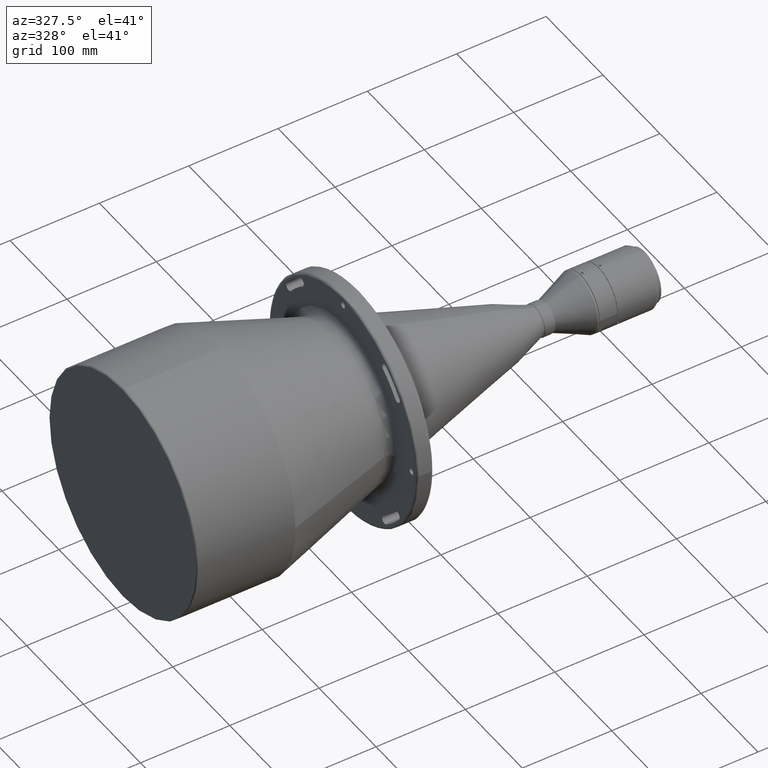
[diagram: clean part render]
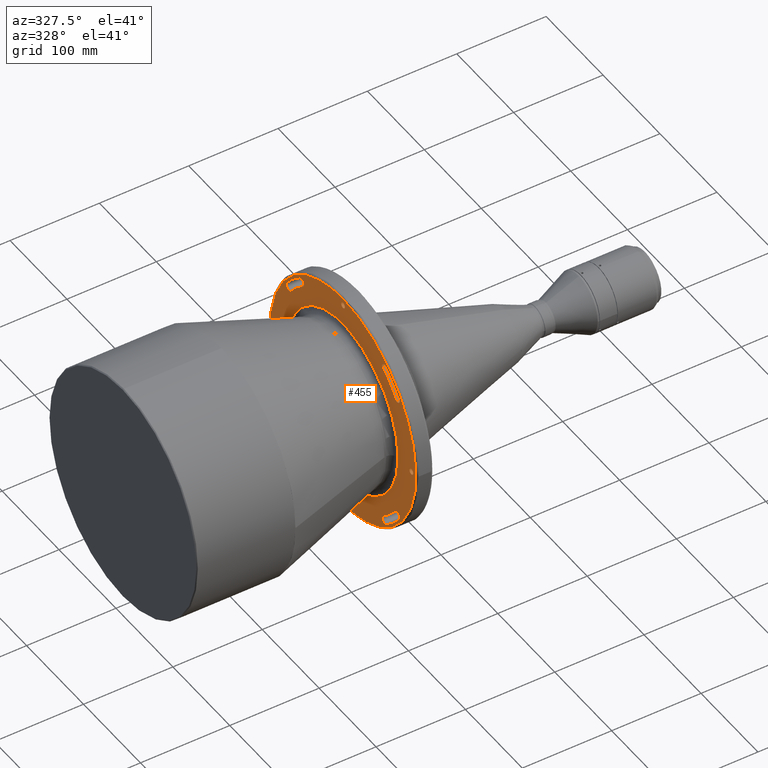
[diagram: same view with one face highlighted and labeled with its STEP entity id]
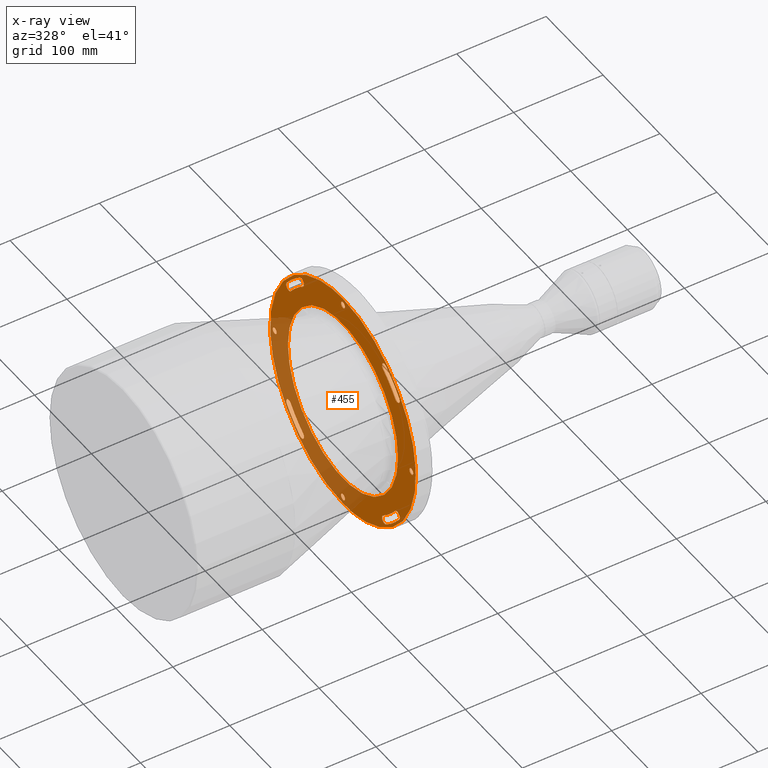
[diagram: x-ray of the same camera — body ghosted, the highlighted face saturated]
A machine part, auxiliary view. The second image highlights one B-rep face of the part: STEP entity #455.
The next image is the same camera in x-ray: the body ghosted, the highlighted face saturated — about 33% of this face is hidden behind the body in this view.
In plain terms, the highlighted planar face has unit normal (1, -0, 0).
Its self-contained STEP definition (entity closure, byte-faithful):
#12 = CIRCLE ( 'NONE', #3722, 3.400000000000014100 ) ;
#15 = FACE_BOUND ( 'NONE', #859, .T. ) ;
#24 =( BOUNDED_CURVE ( )  B_SPLINE_CURVE ( 3, ( #3033, #3433, #938, #2701 ),
 .UNSPECIFIED., .F., .F. ) 
 B_SPLINE_CURVE_WITH_KNOTS ( ( 4, 4 ),
 ( 0.0000000000000000000, 1.000000000000000000 ),
 .UNSPECIFIED. ) 
 CURVE ( )  GEOMETRIC_REPRESENTATION_ITEM ( )  RATIONAL_B_SPLINE_CURVE ( ( 0.9565783021300904300, 0.3188594340433632000, 0.3188594340433632000, 0.9565783021300904300 ) ) 
 REPRESENTATION_ITEM ( '' )  );
#27 = VERTEX_POINT ( 'NONE', #1159 ) ;
#30 = ORIENTED_EDGE ( 'NONE', *, *, #1424, .F. ) ;
#42 = CIRCLE ( 'NONE', #2256, 4.500000000000003600 ) ;
#94 = ORIENTED_EDGE ( 'NONE', *, *, #972, .F. ) ;
#113 = DIRECTION ( 'NONE',  ( -1.000000000000000000, -0.0000000000000000000, -0.0000000000000000000 ) ) ;
#117 = DIRECTION ( 'NONE',  ( -1.000000000000000000, -0.0000000000000000000, -0.0000000000000000000 ) ) ;
#127 = DIRECTION ( 'NONE',  ( 1.000000000000000000, 3.906311018285495800E-017, -0.0000000000000000000 ) ) ;
#136 = DIRECTION ( 'NONE',  ( -1.000000000000000000, -0.0000000000000000000, -0.0000000000000000000 ) ) ;
#138 = CARTESIAN_POINT ( 'NONE',  ( -45.89999999999999900, 98.77249086671233200, 75.79079791101561600 ) ) ;
#192 = ORIENTED_EDGE ( 'NONE', *, *, #3648, .F. ) ;
#203 = VERTEX_POINT ( 'NONE', #1482 ) ;
#211 = AXIS2_PLACEMENT_3D ( 'NONE', #3548, #3510, #1679 ) ;
#212 = DIRECTION ( 'NONE',  ( -1.000000000000000000, -0.0000000000000000000, -0.0000000000000000000 ) ) ;
#218 = EDGE_LOOP ( 'NONE', ( #496, #3665 ) ) ;
#225 = CARTESIAN_POINT ( 'NONE',  ( -45.89999999999999900, 95.20240083499999200, 73.05137148100000400 ) ) ;
#236 = CARTESIAN_POINT ( 'NONE',  ( -45.89999999999999900, 95.20240083499999200, -73.05137148100000400 ) ) ;
#262 = CARTESIAN_POINT ( 'NONE',  ( -45.90000000019109200, 0.0000000000000000000, 127.9999999753477200 ) ) ;
#273 = VERTEX_POINT ( 'NONE', #633 ) ;
#292 = FACE_BOUND ( 'NONE', #2420, .T. ) ;
#305 = AXIS2_PLACEMENT_3D ( 'NONE', #1843, #3089, #910 ) ;
#327 = CARTESIAN_POINT ( 'NONE',  ( -45.89999999999999900, 0.0000000000000000000, 120.0000000000000000 ) ) ;
#346 = AXIS2_PLACEMENT_3D ( 'NONE', #2882, #3518, #744 ) ;
#350 = CARTESIAN_POINT ( 'NONE',  ( -45.89999999999999900, 0.0000000000000000000, 116.5999999999999900 ) ) ;
#358 = EDGE_CURVE ( 'NONE', #3290, #2412, #1556, .T. ) ;
#382 = CARTESIAN_POINT ( 'NONE',  ( -45.89999999999999900, -75.79079791138174500, 98.77249086643141100 ) ) ;
#385 = CIRCLE ( 'NONE', #346, 124.5000000000000000 ) ;
#395 = AXIS2_PLACEMENT_3D ( 'NONE', #1325, #1607, #3500 ) ;
#414 = DIRECTION ( 'NONE',  ( -7.170020377257189800E-017, 1.000000000000000000, 0.0000000000000000000 ) ) ;
#418 = ORIENTED_EDGE ( 'NONE', *, *, #1136, .F. ) ;
#450 = CARTESIAN_POINT ( 'NONE',  ( -45.89999999999999900, 0.0000000000000000000, -123.4000000000000100 ) ) ;
#455 = ADVANCED_FACE ( 'NONE', ( #2869, #2682, #2778, #1935, #1128, #292, #3509, #2828, #15, #1658 ), #722, .F. ) ;
#474 = AXIS2_PLACEMENT_3D ( 'NONE', #2252, #3517, #1938 ) ;
#490 = CIRCLE ( 'NONE', #1712, 124.5000000000000000 ) ;
#496 = ORIENTED_EDGE ( 'NONE', *, *, #3302, .F. ) ;
#511 = ORIENTED_EDGE ( 'NONE', *, *, #3378, .F. ) ;
#520 = VERTEX_POINT ( 'NONE', #1708 ) ;
#528 = CIRCLE ( 'NONE', #1856, 96.77648791510999600 ) ;
#531 = EDGE_CURVE ( 'NONE', #824, #2434, #3370, .T. ) ;
#533 = DIRECTION ( 'NONE',  ( 0.0000000000000000000, 0.0000000000000000000, -1.000000000000000000 ) ) ;
#568 = ORIENTED_EDGE ( 'NONE', *, *, #2819, .T. ) ;
#585 = ORIENTED_EDGE ( 'NONE', *, *, #531, .F. ) ;
#588 = CARTESIAN_POINT ( 'NONE',  ( -45.90000000049361300, -96.77648791664294900, 1.185170161598393100E-014 ) ) ;
#595 = VERTEX_POINT ( 'NONE', #2301 ) ;
#602 = AXIS2_PLACEMENT_3D ( 'NONE', #3094, #3121, #1516 ) ;
#614 = VERTEX_POINT ( 'NONE', #1426 ) ;
#617 = EDGE_CURVE ( 'NONE', #3275, #824, #3366, .T. ) ;
#629 = AXIS2_PLACEMENT_3D ( 'NONE', #2005, #2663, #2309 ) ;
#633 = CARTESIAN_POINT ( 'NONE',  ( -45.89999999999999900, -73.05137148100000400, -99.70240083499999200 ) ) ;
#655 = AXIS2_PLACEMENT_3D ( 'NONE', #327, #699, #3764 ) ;
#680 = AXIS2_PLACEMENT_3D ( 'NONE', #1149, #4006, #1251 ) ;
#695 = EDGE_LOOP ( 'NONE', ( #30, #2765 ) ) ;
#699 = DIRECTION ( 'NONE',  ( -1.000000000000000000, 0.0000000000000000000, -0.0000000000000000000 ) ) ;
#717 = CARTESIAN_POINT ( 'NONE',  ( -45.89999999999999900, -120.0000000000000000, 3.399999999999999900 ) ) ;
#722 = PLANE ( 'NONE',  #395 ) ;
#730 = CIRCLE ( 'NONE', #927, 4.500000000000003600 ) ;
#744 = DIRECTION ( 'NONE',  ( 0.0000000000000000000, -7.105427357601001900E-015, -1.000000000000000000 ) ) ;
#751 = VERTEX_POINT ( 'NONE', #2727 ) ;
#796 = CARTESIAN_POINT ( 'NONE',  ( -45.89999999999999900, 0.0000000000000000000, 0.0000000000000000000 ) ) ;
#808 = AXIS2_PLACEMENT_3D ( 'NONE', #2329, #2643, #2613 ) ;
#824 = VERTEX_POINT ( 'NONE', #1572 ) ;
#844 = VERTEX_POINT ( 'NONE', #350 ) ;
#845 = DIRECTION ( 'NONE',  ( 0.0000000000000000000, 0.0000000000000000000, -1.000000000000000000 ) ) ;
#859 = EDGE_LOOP ( 'NONE', ( #1179, #1726, #418, #2808, #1767 ) ) ;
#865 = CARTESIAN_POINT ( 'NONE',  ( -45.89999999999999900, 0.0000000000000000000, 120.0000000000000000 ) ) ;
#910 = DIRECTION ( 'NONE',  ( 0.0000000000000000000, 3.083952846180988100E-015, -1.000000000000000000 ) ) ;
#915 = VERTEX_POINT ( 'NONE', #1043 ) ;
#927 = AXIS2_PLACEMENT_3D ( 'NONE', #1163, #212, #2739 ) ;
#938 = CARTESIAN_POINT ( 'NONE',  ( -45.90000000031849900, -256.0000000018774800, -128.0000000012986400 ) ) ;
#972 = EDGE_CURVE ( 'NONE', #2741, #993, #12, .T. ) ;
#990 = EDGE_LOOP ( 'NONE', ( #3694, #1473 ) ) ;
#993 = VERTEX_POINT ( 'NONE', #450 ) ;
#1008 = AXIS2_PLACEMENT_3D ( 'NONE', #1515, #1853, #3706 ) ;
#1043 = CARTESIAN_POINT ( 'NONE',  ( -45.89999999999999900, 120.0000000000000000, 3.399999999999999900 ) ) ;
#1051 = DIRECTION ( 'NONE',  ( 0.0000000000000000000, 0.0000000000000000000, -1.000000000000000000 ) ) ;
#1052 = AXIS2_PLACEMENT_3D ( 'NONE', #1694, #2922, #1709 ) ;
#1071 = CARTESIAN_POINT ( 'NONE',  ( -45.89999999999999900, 0.0000000000000000000, -120.0000000000000000 ) ) ;
#1091 = ORIENTED_EDGE ( 'NONE', *, *, #3917, .F. ) ;
#1095 = AXIS2_PLACEMENT_3D ( 'NONE', #3493, #117, #1332 ) ;
#1107 = EDGE_CURVE ( 'NONE', #3157, #751, #1936, .T. ) ;
#1116 = DIRECTION ( 'NONE',  ( -1.000000000000000000, -0.0000000000000000000, -0.0000000000000000000 ) ) ;
#1121 = EDGE_CURVE ( 'NONE', #915, #595, #1129, .T. ) ;
#1128 = FACE_BOUND ( 'NONE', #2800, .T. ) ;
#1129 = CIRCLE ( 'NONE', #1008, 3.399999999999999900 ) ;
#1136 = EDGE_CURVE ( 'NONE', #3932, #273, #2034, .T. ) ;
#1143 = CARTESIAN_POINT ( 'NONE',  ( -45.90000000049362700, 3.437033114719830800E-016, 0.0000000000000000000 ) ) ;
#1149 = CARTESIAN_POINT ( 'NONE',  ( -45.89999999999999900, -73.05137148100000400, 95.20240083499999200 ) ) ;
#1151 = CARTESIAN_POINT ( 'NONE',  ( -45.90000000031848500, 256.0000000018774200, -128.0000000012986400 ) ) ;
#1159 = CARTESIAN_POINT ( 'NONE',  ( -45.90000000019109200, 0.0000000000000000000, 127.9999999753477200 ) ) ;
#1163 = CARTESIAN_POINT ( 'NONE',  ( -45.89999999999999900, 73.05137148100000400, -95.20240083499999200 ) ) ;
#1179 = ORIENTED_EDGE ( 'NONE', *, *, #2620, .F. ) ;
#1188 = CARTESIAN_POINT ( 'NONE',  ( -45.89999999999999900, -120.0000000000000000, 0.0000000000000000000 ) ) ;
#1206 = EDGE_LOOP ( 'NONE', ( #1380, #568 ) ) ;
#1240 = CARTESIAN_POINT ( 'NONE',  ( -45.89999999999999900, -91.63231080328256400, -70.31194505098048400 ) ) ;
#1248 = ORIENTED_EDGE ( 'NONE', *, *, #3522, .F. ) ;
#1251 = DIRECTION ( 'NONE',  ( 0.0000000000000000000, 0.0000000000000000000, -1.000000000000000000 ) ) ;
#1252 = AXIS2_PLACEMENT_3D ( 'NONE', #236, #3956, #845 ) ;
#1303 = CARTESIAN_POINT ( 'NONE',  ( -45.89999999999999900, 0.0000000000000000000, 0.0000000000000000000 ) ) ;
#1325 = CARTESIAN_POINT ( 'NONE',  ( -45.89999999999999900, -129.5360000000000000, 129.5360000000000000 ) ) ;
#1331 = EDGE_CURVE ( 'NONE', #2667, #1814, #730, .T. ) ;
#1332 = DIRECTION ( 'NONE',  ( 0.0000000000000000000, 0.0000000000000000000, -1.000000000000000000 ) ) ;
#1339 = CARTESIAN_POINT ( 'NONE',  ( -45.90000000049362700, 3.437033114719830800E-016, 0.0000000000000000000 ) ) ;
#1360 = CARTESIAN_POINT ( 'NONE',  ( -45.89999999999999900, -98.77249086615047700, -75.79079791174785900 ) ) ;
#1366 = VERTEX_POINT ( 'NONE', #2062 ) ;
#1377 = EDGE_CURVE ( 'NONE', #3287, #27, #2300, .T. ) ;
#1380 = ORIENTED_EDGE ( 'NONE', *, *, #2000, .T. ) ;
#1413 = CARTESIAN_POINT ( 'NONE',  ( -45.89999999999999900, 70.31194502767047500, -91.63231082116092800 ) ) ;
#1424 = EDGE_CURVE ( 'NONE', #595, #915, #3160, .T. ) ;
#1426 = CARTESIAN_POINT ( 'NONE',  ( -45.89999999999999900, -95.20240083499999200, 68.55137148100000400 ) ) ;
#1439 = VERTEX_POINT ( 'NONE', #588 ) ;
#1449 = CIRCLE ( 'NONE', #3803, 3.400000000000000400 ) ;
#1473 = ORIENTED_EDGE ( 'NONE', *, *, #3585, .F. ) ;
#1482 = CARTESIAN_POINT ( 'NONE',  ( -45.89999999999999900, 4.163799117101001100E-016, 123.3999999999999900 ) ) ;
#1496 = CIRCLE ( 'NONE', #3687, 4.500000000000003600 ) ;
#1502 = CARTESIAN_POINT ( 'NONE',  ( -45.90000000019109200, 0.0000000000000000000, -127.9999999753477200 ) ) ;
#1515 = CARTESIAN_POINT ( 'NONE',  ( -45.89999999999999900, 120.0000000000000000, 0.0000000000000000000 ) ) ;
#1516 = DIRECTION ( 'NONE',  ( 0.0000000000000000000, 0.0000000000000000000, -1.000000000000000000 ) ) ;
#1524 = DIRECTION ( 'NONE',  ( -1.000000000000000000, -0.0000000000000000000, -0.0000000000000000000 ) ) ;
#1547 = DIRECTION ( 'NONE',  ( -1.000000000000000000, -0.0000000000000000000, -0.0000000000000000000 ) ) ;
#1556 = CIRCLE ( 'NONE', #2044, 4.500000000000003600 ) ;
#1572 = CARTESIAN_POINT ( 'NONE',  ( -45.89999999999999900, 95.20240083499999200, 68.55137148100000400 ) ) ;
#1591 = VERTEX_POINT ( 'NONE', #3495 ) ;
#1607 = DIRECTION ( 'NONE',  ( 1.000000000000000000, -0.0000000000000000000, 0.0000000000000000000 ) ) ;
#1610 = ORIENTED_EDGE ( 'NONE', *, *, #1107, .F. ) ;
#1616 = ORIENTED_EDGE ( 'NONE', *, *, #1778, .F. ) ;
#1645 = CARTESIAN_POINT ( 'NONE',  ( -45.90000000019109200, 0.0000000000000000000, -127.9999999753477200 ) ) ;
#1650 = VERTEX_POINT ( 'NONE', #717 ) ;
#1658 = FACE_OUTER_BOUND ( 'NONE', #990, .T. ) ;
#1677 = DIRECTION ( 'NONE',  ( 0.0000000000000000000, 0.0000000000000000000, -1.000000000000000000 ) ) ;
#1679 = DIRECTION ( 'NONE',  ( 0.0000000000000000000, 0.0000000000000000000, -1.000000000000000000 ) ) ;
#1686 = CIRCLE ( 'NONE', #1095, 124.5000000000000000 ) ;
#1694 = CARTESIAN_POINT ( 'NONE',  ( -45.89999999999999900, -73.05137148100000400, -95.20240083499999200 ) ) ;
#1702 = ORIENTED_EDGE ( 'NONE', *, *, #3771, .F. ) ;
#1708 = CARTESIAN_POINT ( 'NONE',  ( -45.89999999999999900, -98.77249087056949900, 75.79079790596790600 ) ) ;
#1709 = DIRECTION ( 'NONE',  ( 0.0000000000000000000, 0.0000000000000000000, -1.000000000000000000 ) ) ;
#1712 = AXIS2_PLACEMENT_3D ( 'NONE', #2847, #2508, #3188 ) ;
#1726 = ORIENTED_EDGE ( 'NONE', *, *, #3983, .F. ) ;
#1766 = AXIS2_PLACEMENT_3D ( 'NONE', #1303, #3474, #2563 ) ;
#1767 = ORIENTED_EDGE ( 'NONE', *, *, #358, .F. ) ;
#1778 = EDGE_CURVE ( 'NONE', #2434, #3774, #2526, .T. ) ;
#1808 = CARTESIAN_POINT ( 'NONE',  ( -45.90000000031848500, 256.0000000018774200, 128.0000000012986400 ) ) ;
#1812 = ORIENTED_EDGE ( 'NONE', *, *, #2729, .F. ) ;
#1814 = VERTEX_POINT ( 'NONE', #1413 ) ;
#1821 = EDGE_LOOP ( 'NONE', ( #511, #1702, #3760, #3867, #1610 ) ) ;
#1831 = CIRCLE ( 'NONE', #1922, 4.500000000000003600 ) ;
#1843 = CARTESIAN_POINT ( 'NONE',  ( -45.89999999999999900, -95.20240083499999200, 73.05137148100000400 ) ) ;
#1853 = DIRECTION ( 'NONE',  ( -1.000000000000000000, -0.0000000000000000000, -0.0000000000000000000 ) ) ;
#1856 = AXIS2_PLACEMENT_3D ( 'NONE', #1143, #3611, #2092 ) ;
#1860 = ORIENTED_EDGE ( 'NONE', *, *, #3728, .F. ) ;
#1898 = EDGE_CURVE ( 'NONE', #2738, #1591, #3156, .T. ) ;
#1912 = AXIS2_PLACEMENT_3D ( 'NONE', #225, #1116, #3035 ) ;
#1918 = CARTESIAN_POINT ( 'NONE',  ( -45.89999999999999900, 73.05137148100000400, -99.70240083499999200 ) ) ;
#1922 = AXIS2_PLACEMENT_3D ( 'NONE', #3204, #3242, #3216 ) ;
#1935 = FACE_BOUND ( 'NONE', #218, .T. ) ;
#1936 = CIRCLE ( 'NONE', #680, 4.500000000000003600 ) ;
#1938 = DIRECTION ( 'NONE',  ( 0.0000000000000000000, 0.0000000000000000000, -1.000000000000000000 ) ) ;
#2000 = EDGE_CURVE ( 'NONE', #3995, #1439, #528, .T. ) ;
#2005 = CARTESIAN_POINT ( 'NONE',  ( -45.89999999999999900, 0.0000000000000000000, 0.0000000000000000000 ) ) ;
#2014 = AXIS2_PLACEMENT_3D ( 'NONE', #1188, #1547, #2775 ) ;
#2018 = CIRCLE ( 'NONE', #211, 115.5000000000000000 ) ;
#2034 = CIRCLE ( 'NONE', #2631, 4.500000000000003600 ) ;
#2044 = AXIS2_PLACEMENT_3D ( 'NONE', #2172, #3128, #2829 ) ;
#2057 = EDGE_CURVE ( 'NONE', #1650, #3897, #2362, .T. ) ;
#2062 = CARTESIAN_POINT ( 'NONE',  ( -45.89999999999999900, -91.63231080409548200, 70.31194504993158000 ) ) ;
#2092 = DIRECTION ( 'NONE',  ( -7.170020377257189800E-017, 1.000000000000000000, 0.0000000000000000000 ) ) ;
#2110 = CIRCLE ( 'NONE', #305, 4.500000000000003600 ) ;
#2143 = ORIENTED_EDGE ( 'NONE', *, *, #2690, .F. ) ;
#2150 = CIRCLE ( 'NONE', #474, 3.399999999999999900 ) ;
#2172 = CARTESIAN_POINT ( 'NONE',  ( -45.89999999999999900, -95.20240083499999200, -73.05137148100000400 ) ) ;
#2241 = DIRECTION ( 'NONE',  ( 0.0000000000000000000, 0.0000000000000000000, -1.000000000000000000 ) ) ;
#2248 = ORIENTED_EDGE ( 'NONE', *, *, #617, .F. ) ;
#2252 = CARTESIAN_POINT ( 'NONE',  ( -45.89999999999999900, -120.0000000000000000, 0.0000000000000000000 ) ) ;
#2256 = AXIS2_PLACEMENT_3D ( 'NONE', #3207, #113, #2241 ) ;
#2280 = EDGE_CURVE ( 'NONE', #3774, #2714, #42, .T. ) ;
#2289 = DIRECTION ( 'NONE',  ( -1.000000000000000000, -0.0000000000000000000, -0.0000000000000000000 ) ) ;
#2300 =( BOUNDED_CURVE ( )  B_SPLINE_CURVE ( 3, ( #1502, #1151, #1808, #262 ),
 .UNSPECIFIED., .F., .F. ) 
 B_SPLINE_CURVE_WITH_KNOTS ( ( 4, 4 ),
 ( 0.0000000000000000000, 1.000000000000000000 ),
 .UNSPECIFIED. ) 
 CURVE ( )  GEOMETRIC_REPRESENTATION_ITEM ( )  RATIONAL_B_SPLINE_CURVE ( ( 0.9565783021300869900, 0.3188594340433622000, 0.3188594340433622000, 0.9565783021300869900 ) ) 
 REPRESENTATION_ITEM ( '' )  );
#2301 = CARTESIAN_POINT ( 'NONE',  ( -45.89999999999999900, 120.0000000000000000, -3.399999999999999900 ) ) ;
#2309 = DIRECTION ( 'NONE',  ( 0.0000000000000000000, 0.0000000000000000000, -1.000000000000000000 ) ) ;
#2314 = EDGE_CURVE ( 'NONE', #751, #1366, #2018, .T. ) ;
#2318 = CIRCLE ( 'NONE', #1052, 4.500000000000003600 ) ;
#2329 = CARTESIAN_POINT ( 'NONE',  ( -45.89999999999999900, 95.20240083499999200, 73.05137148100000400 ) ) ;
#2351 = VERTEX_POINT ( 'NONE', #3261 ) ;
#2362 = CIRCLE ( 'NONE', #2014, 3.399999999999999900 ) ;
#2370 = EDGE_LOOP ( 'NONE', ( #1248, #2143 ) ) ;
#2385 = AXIS2_PLACEMENT_3D ( 'NONE', #3539, #3836, #1051 ) ;
#2408 = DIRECTION ( 'NONE',  ( -1.000000000000000000, 0.0000000000000000000, -0.0000000000000000000 ) ) ;
#2412 = VERTEX_POINT ( 'NONE', #1240 ) ;
#2413 = AXIS2_PLACEMENT_3D ( 'NONE', #796, #2971, #3286 ) ;
#2420 = EDGE_LOOP ( 'NONE', ( #1860, #2441, #1091, #3656, #3861 ) ) ;
#2434 = VERTEX_POINT ( 'NONE', #3164 ) ;
#2441 = ORIENTED_EDGE ( 'NONE', *, *, #1898, .F. ) ;
#2508 = DIRECTION ( 'NONE',  ( -1.000000000000000000, -0.0000000000000000000, -0.0000000000000000000 ) ) ;
#2515 = CARTESIAN_POINT ( 'NONE',  ( -45.89999999999999900, -75.79079789583865100, -98.77249087834191200 ) ) ;
#2526 = CIRCLE ( 'NONE', #2413, 115.5000000000000000 ) ;
#2555 = EDGE_CURVE ( 'NONE', #1366, #614, #2110, .T. ) ;
#2563 = DIRECTION ( 'NONE',  ( 0.0000000000000000000, 0.0000000000000000000, -1.000000000000000000 ) ) ;
#2565 = CIRCLE ( 'NONE', #655, 3.400000000000000400 ) ;
#2594 = CARTESIAN_POINT ( 'NONE',  ( -45.89999999999999900, 70.31194505102993700, 91.63231080325267900 ) ) ;
#2613 = DIRECTION ( 'NONE',  ( 0.0000000000000000000, 0.0000000000000000000, -1.000000000000000000 ) ) ;
#2620 = EDGE_CURVE ( 'NONE', #2678, #3290, #2807, .T. ) ;
#2631 = AXIS2_PLACEMENT_3D ( 'NONE', #3986, #1524, #3093 ) ;
#2643 = DIRECTION ( 'NONE',  ( -1.000000000000000000, -0.0000000000000000000, -0.0000000000000000000 ) ) ;
#2663 = DIRECTION ( 'NONE',  ( 1.000000000000000000, 0.0000000000000000000, 0.0000000000000000000 ) ) ;
#2667 = VERTEX_POINT ( 'NONE', #1918 ) ;
#2678 = VERTEX_POINT ( 'NONE', #2515 ) ;
#2680 = CARTESIAN_POINT ( 'NONE',  ( -45.90000000049362700, 96.77648791664294900, 0.0000000000000000000 ) ) ;
#2682 = FACE_BOUND ( 'NONE', #695, .T. ) ;
#2690 = EDGE_CURVE ( 'NONE', #203, #844, #2565, .T. ) ;
#2701 = CARTESIAN_POINT ( 'NONE',  ( -45.90000000019109200, 0.0000000000000000000, -127.9999999753477200 ) ) ;
#2714 = VERTEX_POINT ( 'NONE', #3168 ) ;
#2727 = CARTESIAN_POINT ( 'NONE',  ( -45.89999999999999900, -70.31194505134662600, 91.63231080300163000 ) ) ;
#2729 = EDGE_CURVE ( 'NONE', #993, #2741, #3057, .T. ) ;
#2738 = VERTEX_POINT ( 'NONE', #3515 ) ;
#2739 = DIRECTION ( 'NONE',  ( 0.0000000000000000000, 0.0000000000000000000, -1.000000000000000000 ) ) ;
#2741 = VERTEX_POINT ( 'NONE', #3848 ) ;
#2748 = ORIENTED_EDGE ( 'NONE', *, *, #2280, .F. ) ;
#2765 = ORIENTED_EDGE ( 'NONE', *, *, #1121, .F. ) ;
#2775 = DIRECTION ( 'NONE',  ( 0.0000000000000000000, 0.0000000000000000000, -1.000000000000000000 ) ) ;
#2778 = FACE_BOUND ( 'NONE', #2370, .T. ) ;
#2800 = EDGE_LOOP ( 'NONE', ( #1812, #94 ) ) ;
#2807 = CIRCLE ( 'NONE', #1766, 124.5000000000000000 ) ;
#2808 = ORIENTED_EDGE ( 'NONE', *, *, #3454, .F. ) ;
#2819 = EDGE_CURVE ( 'NONE', #1439, #3995, #3772, .T. ) ;
#2828 = FACE_BOUND ( 'NONE', #1821, .T. ) ;
#2829 = DIRECTION ( 'NONE',  ( 0.0000000000000000000, 0.0000000000000000000, -1.000000000000000000 ) ) ;
#2847 = CARTESIAN_POINT ( 'NONE',  ( -45.89999999999999900, 0.0000000000000000000, 0.0000000000000000000 ) ) ;
#2869 = FACE_BOUND ( 'NONE', #1206, .T. ) ;
#2882 = CARTESIAN_POINT ( 'NONE',  ( -45.89999999999999900, 0.0000000000000000000, 0.0000000000000000000 ) ) ;
#2908 = CIRCLE ( 'NONE', #629, 115.5000000000000000 ) ;
#2922 = DIRECTION ( 'NONE',  ( -1.000000000000000000, -0.0000000000000000000, -0.0000000000000000000 ) ) ;
#2925 = AXIS2_PLACEMENT_3D ( 'NONE', #3277, #2963, #3551 ) ;
#2948 = CARTESIAN_POINT ( 'NONE',  ( -45.89999999999999900, -70.31194505029769500, -91.63231080381456200 ) ) ;
#2963 = DIRECTION ( 'NONE',  ( 1.000000000000000000, 0.0000000000000000000, 0.0000000000000000000 ) ) ;
#2971 = DIRECTION ( 'NONE',  ( 1.000000000000000000, 0.0000000000000000000, 0.0000000000000000000 ) ) ;
#3033 = CARTESIAN_POINT ( 'NONE',  ( -45.90000000019109200, 0.0000000000000000000, 127.9999999753477200 ) ) ;
#3035 = DIRECTION ( 'NONE',  ( 0.0000000000000000000, -3.083952846180988100E-015, -1.000000000000000000 ) ) ;
#3057 = CIRCLE ( 'NONE', #2385, 3.400000000000014100 ) ;
#3089 = DIRECTION ( 'NONE',  ( -1.000000000000000000, -0.0000000000000000000, -0.0000000000000000000 ) ) ;
#3093 = DIRECTION ( 'NONE',  ( 0.0000000000000000000, 0.0000000000000000000, -1.000000000000000000 ) ) ;
#3094 = CARTESIAN_POINT ( 'NONE',  ( -45.89999999999999900, 120.0000000000000000, 0.0000000000000000000 ) ) ;
#3121 = DIRECTION ( 'NONE',  ( -1.000000000000000000, -0.0000000000000000000, -0.0000000000000000000 ) ) ;
#3128 = DIRECTION ( 'NONE',  ( -1.000000000000000000, -0.0000000000000000000, -0.0000000000000000000 ) ) ;
#3149 = CIRCLE ( 'NONE', #2925, 115.5000000000000000 ) ;
#3156 = CIRCLE ( 'NONE', #1252, 4.500000000000003600 ) ;
#3157 = VERTEX_POINT ( 'NONE', #382 ) ;
#3160 = CIRCLE ( 'NONE', #602, 3.399999999999999900 ) ;
#3164 = CARTESIAN_POINT ( 'NONE',  ( -45.89999999999999900, 91.63231081395029800, 70.31194503706754500 ) ) ;
#3167 = DIRECTION ( 'NONE',  ( 0.0000000000000000000, 3.083952846180988100E-015, -1.000000000000000000 ) ) ;
#3168 = CARTESIAN_POINT ( 'NONE',  ( -45.89999999999999900, 75.79079791609713400, 98.77249086279704200 ) ) ;
#3188 = DIRECTION ( 'NONE',  ( 0.0000000000000000000, 0.0000000000000000000, -1.000000000000000000 ) ) ;
#3195 = CARTESIAN_POINT ( 'NONE',  ( -45.89999999999999900, 73.05137148100000400, -95.20240083499999200 ) ) ;
#3204 = CARTESIAN_POINT ( 'NONE',  ( -45.89999999999999900, -95.20240083499999200, 73.05137148100000400 ) ) ;
#3207 = CARTESIAN_POINT ( 'NONE',  ( -45.89999999999999900, 73.05137148100000400, 95.20240083499999200 ) ) ;
#3208 = AXIS2_PLACEMENT_3D ( 'NONE', #1339, #127, #414 ) ;
#3216 = DIRECTION ( 'NONE',  ( 0.0000000000000000000, 0.0000000000000000000, -1.000000000000000000 ) ) ;
#3242 = DIRECTION ( 'NONE',  ( -1.000000000000000000, -0.0000000000000000000, -0.0000000000000000000 ) ) ;
#3261 = CARTESIAN_POINT ( 'NONE',  ( -45.89999999999999900, 75.79079791064951600, -98.77249086699328000 ) ) ;
#3275 = VERTEX_POINT ( 'NONE', #138 ) ;
#3277 = CARTESIAN_POINT ( 'NONE',  ( -45.89999999999999900, 0.0000000000000000000, 0.0000000000000000000 ) ) ;
#3286 = DIRECTION ( 'NONE',  ( 0.0000000000000000000, 0.0000000000000000000, -1.000000000000000000 ) ) ;
#3287 = VERTEX_POINT ( 'NONE', #1645 ) ;
#3290 = VERTEX_POINT ( 'NONE', #1360 ) ;
#3302 = EDGE_CURVE ( 'NONE', #3897, #1650, #2150, .T. ) ;
#3366 = CIRCLE ( 'NONE', #1912, 4.500000000000003600 ) ;
#3370 = CIRCLE ( 'NONE', #808, 4.500000000000003600 ) ;
#3378 = EDGE_CURVE ( 'NONE', #520, #3157, #1686, .T. ) ;
#3433 = CARTESIAN_POINT ( 'NONE',  ( -45.90000000031849900, -256.0000000018774800, 128.0000000012986400 ) ) ;
#3454 = EDGE_CURVE ( 'NONE', #2412, #3932, #2908, .T. ) ;
#3474 = DIRECTION ( 'NONE',  ( -1.000000000000000000, -0.0000000000000000000, -0.0000000000000000000 ) ) ;
#3493 = CARTESIAN_POINT ( 'NONE',  ( -45.89999999999999900, 0.0000000000000000000, 0.0000000000000000000 ) ) ;
#3495 = CARTESIAN_POINT ( 'NONE',  ( -45.89999999999999900, 98.77249085502457100, -75.79079792622641800 ) ) ;
#3500 = DIRECTION ( 'NONE',  ( 0.0000000000000000000, 0.0000000000000000000, -1.000000000000000000 ) ) ;
#3509 = FACE_BOUND ( 'NONE', #3763, .T. ) ;
#3510 = DIRECTION ( 'NONE',  ( 1.000000000000000000, 0.0000000000000000000, 0.0000000000000000000 ) ) ;
#3515 = CARTESIAN_POINT ( 'NONE',  ( -45.89999999999999900, 91.63231080353362800, -70.31194505066382300 ) ) ;
#3517 = DIRECTION ( 'NONE',  ( -1.000000000000000000, -0.0000000000000000000, -0.0000000000000000000 ) ) ;
#3518 = DIRECTION ( 'NONE',  ( -1.000000000000000000, -0.0000000000000000000, -0.0000000000000000000 ) ) ;
#3522 = EDGE_CURVE ( 'NONE', #844, #203, #1449, .T. ) ;
#3526 = CARTESIAN_POINT ( 'NONE',  ( -45.89999999999999900, -120.0000000000000000, -3.399999999999999900 ) ) ;
#3539 = CARTESIAN_POINT ( 'NONE',  ( -45.89999999999999900, 0.0000000000000000000, -120.0000000000000000 ) ) ;
#3548 = CARTESIAN_POINT ( 'NONE',  ( -45.89999999999999900, 0.0000000000000000000, 0.0000000000000000000 ) ) ;
#3551 = DIRECTION ( 'NONE',  ( 0.0000000000000000000, 0.0000000000000000000, -1.000000000000000000 ) ) ;
#3585 = EDGE_CURVE ( 'NONE', #27, #3287, #24, .T. ) ;
#3611 = DIRECTION ( 'NONE',  ( 1.000000000000000000, 3.906311018285495800E-017, -0.0000000000000000000 ) ) ;
#3648 = EDGE_CURVE ( 'NONE', #2714, #3275, #490, .T. ) ;
#3656 = ORIENTED_EDGE ( 'NONE', *, *, #1331, .F. ) ;
#3665 = ORIENTED_EDGE ( 'NONE', *, *, #2057, .F. ) ;
#3687 = AXIS2_PLACEMENT_3D ( 'NONE', #3195, #2289, #3167 ) ;
#3694 = ORIENTED_EDGE ( 'NONE', *, *, #1377, .F. ) ;
#3706 = DIRECTION ( 'NONE',  ( 0.0000000000000000000, 0.0000000000000000000, -1.000000000000000000 ) ) ;
#3722 = AXIS2_PLACEMENT_3D ( 'NONE', #1071, #136, #1677 ) ;
#3728 = EDGE_CURVE ( 'NONE', #1591, #2351, #385, .T. ) ;
#3760 = ORIENTED_EDGE ( 'NONE', *, *, #2555, .F. ) ;
#3763 = EDGE_LOOP ( 'NONE', ( #192, #2748, #1616, #585, #2248 ) ) ;
#3764 = DIRECTION ( 'NONE',  ( 0.0000000000000000000, 0.0000000000000000000, -1.000000000000000000 ) ) ;
#3771 = EDGE_CURVE ( 'NONE', #614, #520, #1831, .T. ) ;
#3772 = CIRCLE ( 'NONE', #3208, 96.77648791510999600 ) ;
#3774 = VERTEX_POINT ( 'NONE', #2594 ) ;
#3803 = AXIS2_PLACEMENT_3D ( 'NONE', #865, #2408, #533 ) ;
#3836 = DIRECTION ( 'NONE',  ( -1.000000000000000000, -0.0000000000000000000, -0.0000000000000000000 ) ) ;
#3848 = CARTESIAN_POINT ( 'NONE',  ( -45.89999999999999900, 4.163799117101018300E-016, -116.5999999999999800 ) ) ;
#3861 = ORIENTED_EDGE ( 'NONE', *, *, #3887, .F. ) ;
#3867 = ORIENTED_EDGE ( 'NONE', *, *, #2314, .F. ) ;
#3887 = EDGE_CURVE ( 'NONE', #2351, #2667, #1496, .T. ) ;
#3897 = VERTEX_POINT ( 'NONE', #3526 ) ;
#3917 = EDGE_CURVE ( 'NONE', #1814, #2738, #3149, .T. ) ;
#3932 = VERTEX_POINT ( 'NONE', #2948 ) ;
#3956 = DIRECTION ( 'NONE',  ( -1.000000000000000000, -0.0000000000000000000, -0.0000000000000000000 ) ) ;
#3983 = EDGE_CURVE ( 'NONE', #273, #2678, #2318, .T. ) ;
#3986 = CARTESIAN_POINT ( 'NONE',  ( -45.89999999999999900, -73.05137148100000400, -95.20240083499999200 ) ) ;
#3995 = VERTEX_POINT ( 'NONE', #2680 ) ;
#4006 = DIRECTION ( 'NONE',  ( -1.000000000000000000, -0.0000000000000000000, -0.0000000000000000000 ) ) ;